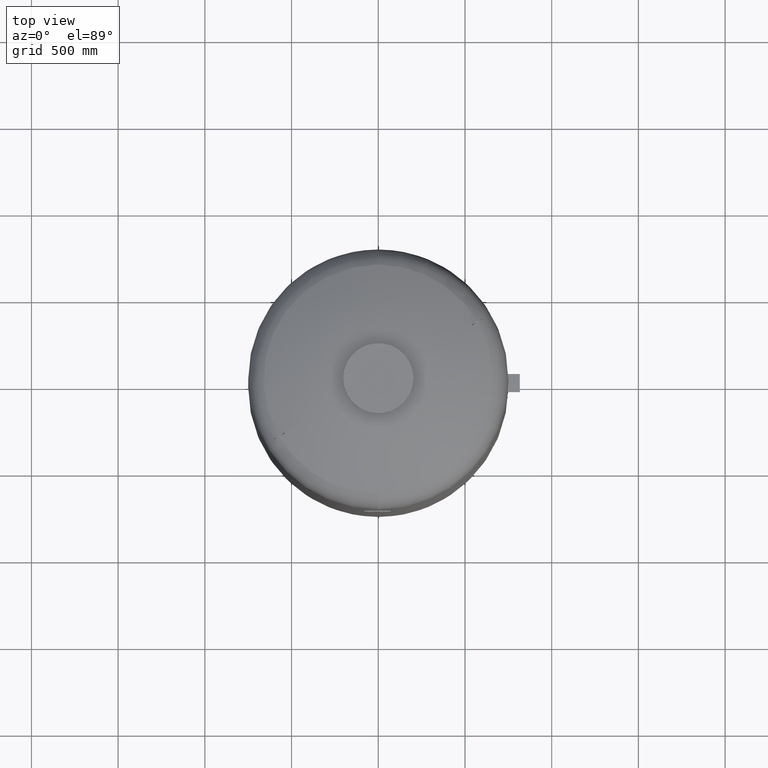
[diagram: clean part render]
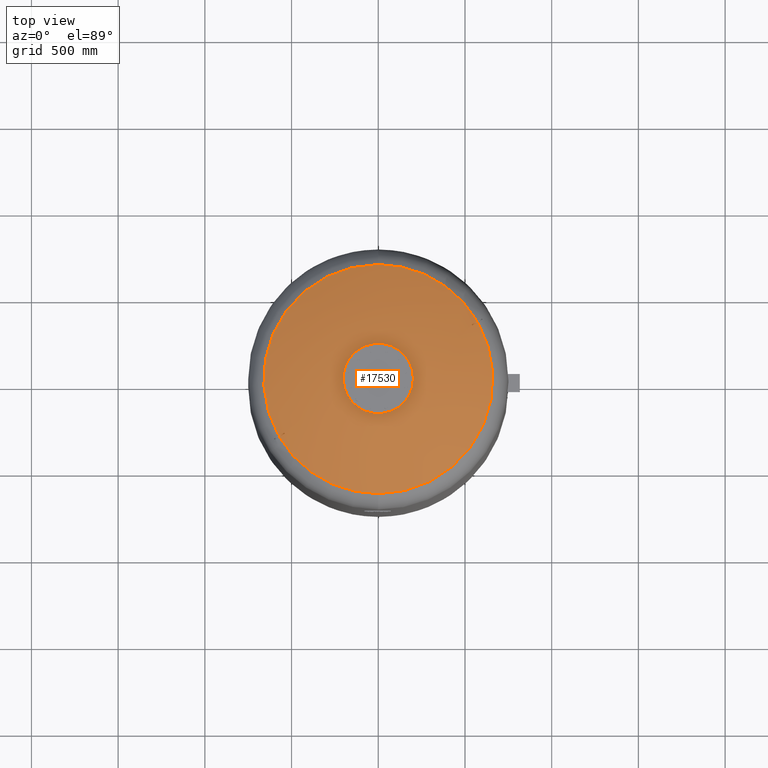
[diagram: same view with one face highlighted and labeled with its STEP entity id]
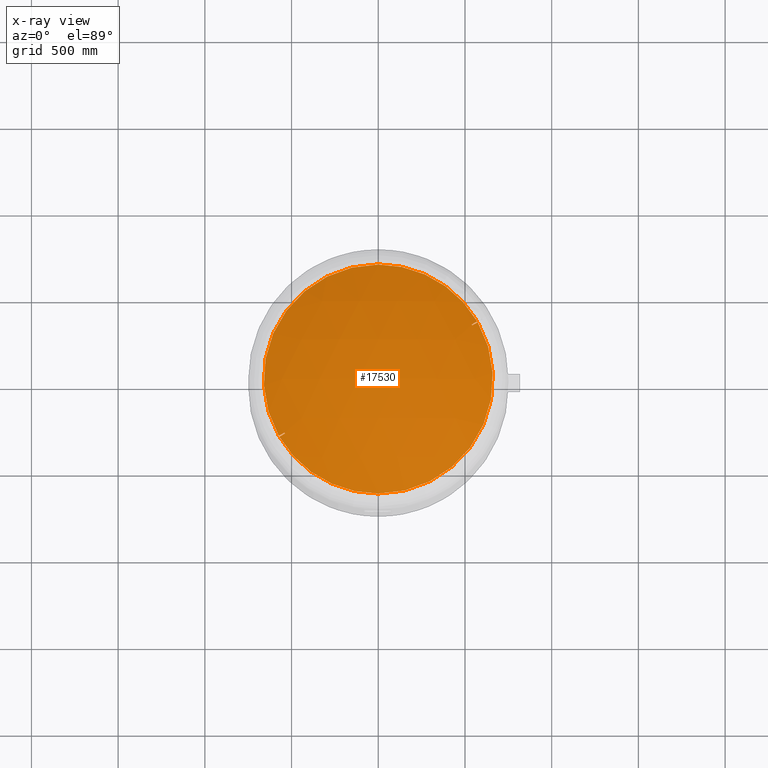
[diagram: x-ray of the same camera — body ghosted, the highlighted face saturated]
A machine part, top view. The second image highlights one B-rep face of the part: STEP entity #17530.
The next image is the same camera in x-ray: the body ghosted, the highlighted face saturated — about 0% of this face is hidden behind the body in this view.
In plain terms, the highlighted spherical surface has radius 1509 mm.
Its self-contained STEP definition (entity closure, byte-faithful):
#16934=CARTESIAN_POINT('',(2.782883E-014,-660.606666666666800,3357.716562866229200));
#16935=VERTEX_POINT('',#16934);
#16951=CARTESIAN_POINT('',(1.087271E-013,660.606666666666800,3357.716562866229200));
#16952=VERTEX_POINT('',#16951);
#16960=CARTESIAN_POINT('',(570.596255916202270,332.898003566943030,3357.716562866229200));
#16961=VERTEX_POINT('',#16960);
#16962=CARTESIAN_POINT('',(7.530601E-015,-2.797401E-014,3357.716562866229200));
#16963=DIRECTION('',(0.0,0.0,-1.0));
#16964=DIRECTION('',(1.0,0.0,0.0));
#16965=AXIS2_PLACEMENT_3D('',#16962,#16963,#16964);
#16966=CIRCLE('',#16965,660.606666666666800);
#16967=EDGE_CURVE('',#16952,#16961,#16966,.T.);
#16996=CARTESIAN_POINT('',(573.596255916202270,327.701851144236400,3357.716562866229200));
#16997=VERTEX_POINT('',#16996);
#17011=CARTESIAN_POINT('',(7.530601E-015,-2.797401E-014,3357.716562866229200));
#17012=DIRECTION('',(0.0,0.0,-1.0));
#17013=DIRECTION('',(1.0,0.0,0.0));
#17014=AXIS2_PLACEMENT_3D('',#17011,#17012,#17013);
#17015=CIRCLE('',#17014,660.606666666666800);
#17016=EDGE_CURVE('',#16997,#16935,#17015,.T.);
#17068=CARTESIAN_POINT('',(-570.596255916196580,-332.898003566952920,3357.716562866229700));
#17069=VERTEX_POINT('',#17068);
#17085=CARTESIAN_POINT('',(-539.004547741172360,-314.658522347942950,3374.879584180558100));
#17086=VERTEX_POINT('',#17085);
#17087=CARTESIAN_POINT('',(1.500000000005994,-2.598076211363742,2001.0));
#17088=DIRECTION('',(0.499999999999994,-0.866025403784442,0.0));
#17089=DIRECTION('',(0.0,0.0,1.0));
#17090=AXIS2_PLACEMENT_3D('',#17087,#17088,#17089);
#17091=CIRCLE('',#17090,1508.997017889697400);
#17092=EDGE_CURVE('',#17086,#17069,#17091,.T.);
#17135=CARTESIAN_POINT('',(-542.004547741172470,-309.462369925236320,3374.879584180558100));
#17136=VERTEX_POINT('',#17135);
#17137=CARTESIAN_POINT('',(-195.850324208316520,-113.074237402545550,1938.348481320245600));
#17138=DIRECTION('',(0.834590199910602,0.481850876581402,0.266981143436977));
#17139=DIRECTION('',(0.0,0.484652475916135,-0.874706795211036));
#17140=AXIS2_PLACEMENT_3D('',#17137,#17138,#17139);
#17141=CIRCLE('',#17140,1490.641692208577100);
#17142=EDGE_CURVE('',#17136,#17086,#17141,.T.);
#17220=CARTESIAN_POINT('',(-573.596255916196580,-327.701851144246290,3357.716562866229700));
#17221=VERTEX_POINT('',#17220);
#17244=CARTESIAN_POINT('',(-1.499999999993967,2.598076211342912,2001.0));
#17245=DIRECTION('',(-0.499999999999994,0.866025403784442,0.0));
#17246=DIRECTION('',(0.0,0.0,-1.0));
#17247=AXIS2_PLACEMENT_3D('',#17244,#17245,#17246);
#17248=CIRCLE('',#17247,1508.997017889697400);
#17249=EDGE_CURVE('',#17221,#17136,#17248,.T.);
#17276=CARTESIAN_POINT('',(7.530601E-015,-2.797401E-014,3357.716562866229200));
#17277=DIRECTION('',(0.0,0.0,-1.0));
#17278=DIRECTION('',(1.0,0.0,0.0));
#17279=AXIS2_PLACEMENT_3D('',#17276,#17277,#17278);
#17280=CIRCLE('',#17279,660.606666666666800);
#17281=EDGE_CURVE('',#16935,#17069,#17280,.T.);
#17286=CARTESIAN_POINT('',(7.530601E-015,-2.797401E-014,3357.716562866229200));
#17287=DIRECTION('',(0.0,0.0,-1.0));
#17288=DIRECTION('',(1.0,0.0,0.0));
#17289=AXIS2_PLACEMENT_3D('',#17286,#17287,#17288);
#17290=CIRCLE('',#17289,660.606666666666800);
#17291=EDGE_CURVE('',#17221,#16952,#17290,.T.);
#17311=CARTESIAN_POINT('',(539.004547741178380,314.658522347932720,3374.879584180558100));
#17312=VERTEX_POINT('',#17311);
#17313=CARTESIAN_POINT('',(-1.499999999993948,2.598076211342792,2001.0));
#17314=DIRECTION('',(-0.500000000000006,0.866025403784435,0.0));
#17315=DIRECTION('',(0.0,0.0,-1.0));
#17316=AXIS2_PLACEMENT_3D('',#17313,#17314,#17315);
#17317=CIRCLE('',#17316,1508.997017889697400);
#17318=EDGE_CURVE('',#17312,#16961,#17317,.T.);
#17361=CARTESIAN_POINT('',(542.004547741178380,309.462369925225970,3374.879584180558100));
#17362=VERTEX_POINT('',#17361);
#17363=CARTESIAN_POINT('',(195.850324208315390,113.074237402547780,1938.348481320245400));
#17364=DIRECTION('',(-0.834590199910595,-0.481850876581413,0.266981143436977));
#17365=DIRECTION('',(0.0,0.484652475916126,0.874706795211040));
#17366=AXIS2_PLACEMENT_3D('',#17363,#17364,#17365);
#17367=CIRCLE('',#17366,1490.641692208577100);
#17368=EDGE_CURVE('',#17362,#17312,#17367,.T.);
#17499=CARTESIAN_POINT('',(1.500000000006090,-2.598076211363818,2001.0));
#17500=DIRECTION('',(0.500000000000006,-0.866025403784435,0.0));
#17501=DIRECTION('',(0.0,0.0,1.0));
#17502=AXIS2_PLACEMENT_3D('',#17499,#17500,#17501);
#17503=CIRCLE('',#17502,1508.997017889697400);
#17504=EDGE_CURVE('',#16997,#17362,#17503,.T.);
#17513=CARTESIAN_POINT('',(1.607048E-013,-2.771988E-013,2001.0));
#17514=DIRECTION('',(0.0,-1.0,0.0));
#17515=DIRECTION('',(-1.0,0.0,0.0));
#17516=AXIS2_PLACEMENT_3D('',#17513,#17514,#17515);
#17517=SPHERICAL_SURFACE('',#17516,1509.0);
#17518=ORIENTED_EDGE('',*,*,#17092,.T.);
#17519=ORIENTED_EDGE('',*,*,#17281,.F.);
#17520=ORIENTED_EDGE('',*,*,#17016,.F.);
#17521=ORIENTED_EDGE('',*,*,#17504,.T.);
#17522=ORIENTED_EDGE('',*,*,#17368,.T.);
#17523=ORIENTED_EDGE('',*,*,#17318,.T.);
#17524=ORIENTED_EDGE('',*,*,#16967,.F.);
#17525=ORIENTED_EDGE('',*,*,#17291,.F.);
#17526=ORIENTED_EDGE('',*,*,#17249,.T.);
#17527=ORIENTED_EDGE('',*,*,#17142,.T.);
#17528=EDGE_LOOP('',(#17518,#17519,#17520,#17521,#17522,#17523,#17524,#17525,#17526,#17527));
#17529=FACE_OUTER_BOUND('',#17528,.T.);
#17530=ADVANCED_FACE('',(#17529),#17517,.T.);